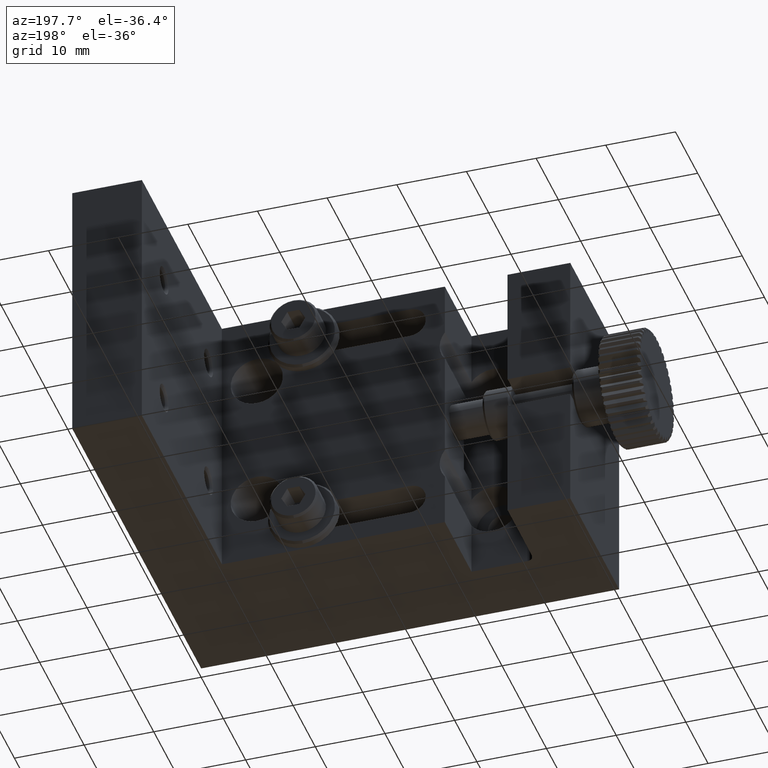
[diagram: clean part render]
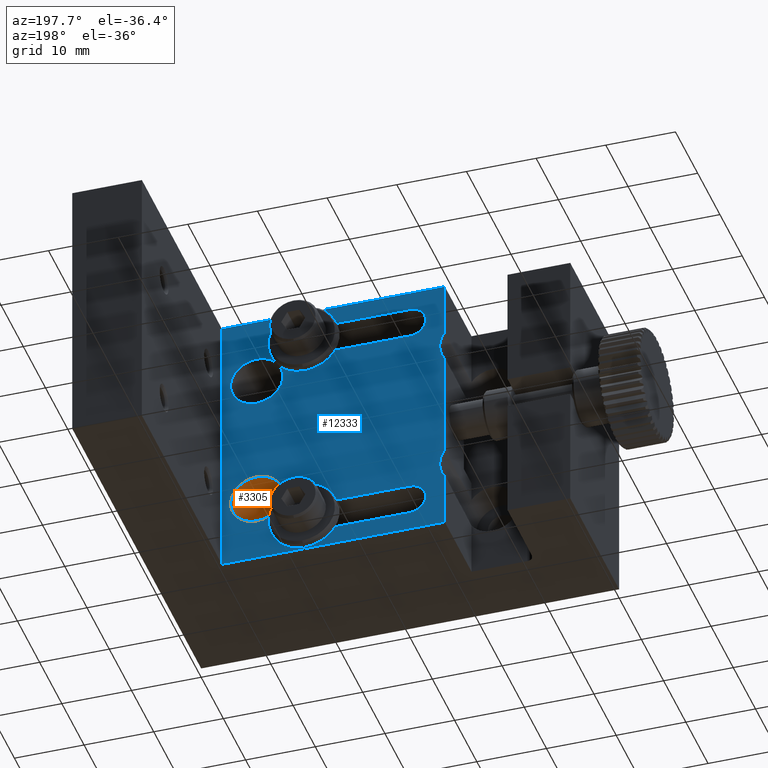
[diagram: same view with the hole feature highlighted: cylindrical wall and planar end face, labeled with their STEP entity ids]
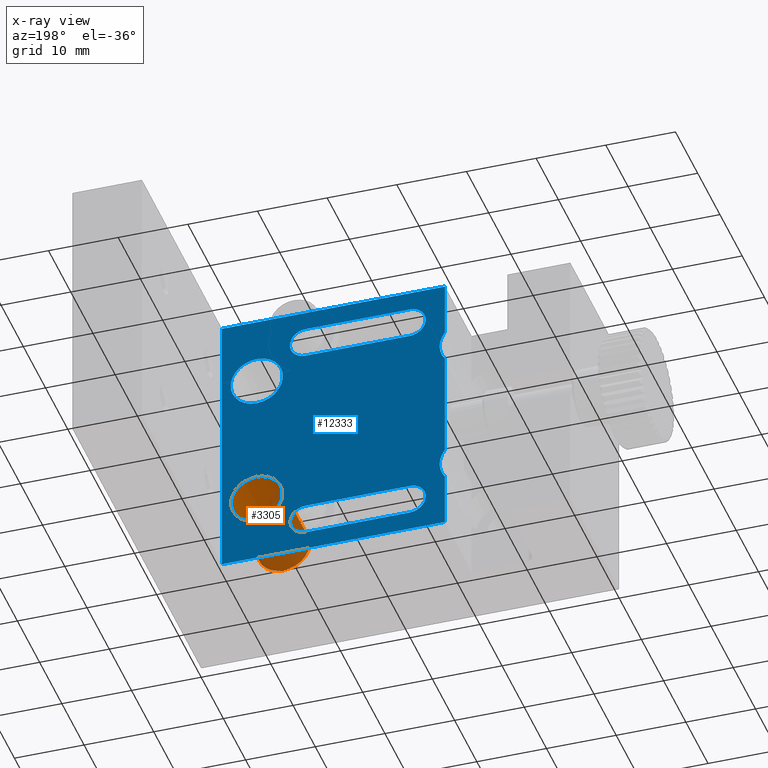
[diagram: x-ray of the same camera — body ghosted, the hole faces saturated]
A machine part, auxiliary view. The highlighted faces form one hole feature of diameter 7.5 mm: the cylindrical wall (entity #3305, orange) and its adjacent planar end face (entity #12333, blue) — they share a circular edge in the B-rep.
The next image is the same camera in x-ray (body ghosted, the hole faces saturated) — the bore reads through the body.
Wall:
#164 = FACE_OUTER_BOUND ( 'NONE', #7133, .T. ) ;
#220 = VERTEX_POINT ( 'NONE', #10266 ) ;
#538 = CARTESIAN_POINT ( 'NONE',  ( 45.00000000000000000, 22.00000000000000000, -30.00000000000000000 ) ) ;
#963 = CIRCLE ( 'NONE', #10586, 3.750000000000003553 ) ;
#1196 = DIRECTION ( 'NONE',  ( 0.000000000000000000, 0.000000000000000000, -1.000000000000000000 ) ) ;
#2188 = CARTESIAN_POINT ( 'NONE',  ( 45.00000000000000000, 22.00000000000000000, -30.00000000000000000 ) ) ;
#2205 = DIRECTION ( 'NONE',  ( 0.000000000000000000, -1.000000000000000000, 0.000000000000000000 ) ) ;
#3263 = DIRECTION ( 'NONE',  ( 0.000000000000000000, 0.000000000000000000, -1.000000000000000000 ) ) ;
#3305 = ADVANCED_FACE ( 'NONE', ( #9349, #164 ), #6210, .F. ) ;
#3923 = EDGE_LOOP ( 'NONE', ( #4760 ) ) ;
#4391 = CARTESIAN_POINT ( 'NONE',  ( 45.00000000000000000, 10.00000000000000000, -33.75000000000000000 ) ) ;
#4475 = AXIS2_PLACEMENT_3D ( 'NONE', #2188, #6277, #10277 ) ;
#4641 = DIRECTION ( 'NONE',  ( 0.000000000000000000, -1.000000000000000000, 0.000000000000000000 ) ) ;
#4760 = ORIENTED_EDGE ( 'NONE', *, *, #11515, .T. ) ;
#5227 = CARTESIAN_POINT ( 'NONE',  ( 45.00000000000000000, 10.00000000000000000, -30.00000000000000000 ) ) ;
#6210 = CYLINDRICAL_SURFACE ( 'NONE', #4475, 3.750000000000003553 ) ;
#6277 = DIRECTION ( 'NONE',  ( 0.000000000000000000, -1.000000000000000000, 0.000000000000000000 ) ) ;
#7133 = EDGE_LOOP ( 'NONE', ( #11522 ) ) ;
#8883 = AXIS2_PLACEMENT_3D ( 'NONE', #538, #4641, #3263 ) ;
#9349 = FACE_OUTER_BOUND ( 'NONE', #3923, .T. ) ;
#9958 = CIRCLE ( 'NONE', #8883, 3.750000000000003553 ) ;
#10266 = CARTESIAN_POINT ( 'NONE',  ( 45.00000000000000000, 22.00000000000000000, -33.75000000000000000 ) ) ;
#10277 = DIRECTION ( 'NONE',  ( 0.000000000000000000, 0.000000000000000000, -1.000000000000000000 ) ) ;
#10586 = AXIS2_PLACEMENT_3D ( 'NONE', #5227, #2205, #1196 ) ;
#11277 = VERTEX_POINT ( 'NONE', #4391 ) ;
#11515 = EDGE_CURVE ( 'NONE', #11277, #11277, #963, .T. ) ;
#11522 = ORIENTED_EDGE ( 'NONE', *, *, #11982, .F. ) ;
#11982 = EDGE_CURVE ( 'NONE', #220, #220, #9958, .T. ) ;
End face:
#202 = FACE_BOUND ( 'NONE', #13129, .T. ) ;
#220 = VERTEX_POINT ( 'NONE', #10266 ) ;
#231 = CARTESIAN_POINT ( 'NONE',  ( 23.00000000000000355, 22.00000000000000000, -32.75000000000000000 ) ) ;
#270 = CARTESIAN_POINT ( 'NONE',  ( 15.00000000000000355, 22.00000000000000000, -30.00000000000000000 ) ) ;
#431 = DIRECTION ( 'NONE',  ( 1.000000000000000000, -0.000000000000000000, 1.224646799147350002E-16 ) ) ;
#538 = CARTESIAN_POINT ( 'NONE',  ( 45.00000000000000000, 22.00000000000000000, -30.00000000000000000 ) ) ;
#576 = ORIENTED_EDGE ( 'NONE', *, *, #1417, .T. ) ;
#593 = CIRCLE ( 'NONE', #8951, 3.750000000000000000 ) ;
#661 = ORIENTED_EDGE ( 'NONE', *, *, #11982, .T. ) ;
#663 = DIRECTION ( 'NONE',  ( 0.000000000000000000, -0.000000000000000000, 1.000000000000000000 ) ) ;
#668 = CARTESIAN_POINT ( 'NONE',  ( 18.00000000000000355, 22.00000000000000000, -12.25000000000000000 ) ) ;
#759 = VECTOR ( 'NONE', #4878, 1000.000000000000000 ) ;
#780 = EDGE_CURVE ( 'NONE', #7961, #1140, #5745, .T. ) ;
#800 = LINE ( 'NONE', #4904, #9975 ) ;
#807 = ORIENTED_EDGE ( 'NONE', *, *, #780, .T. ) ;
#832 = LINE ( 'NONE', #3052, #7858 ) ;
#1069 = EDGE_CURVE ( 'NONE', #6339, #6624, #4459, .T. ) ;
#1116 = CARTESIAN_POINT ( 'NONE',  ( 15.00000000000000355, 22.00000000000000000, -10.00000000000000000 ) ) ;
#1140 = VERTEX_POINT ( 'NONE', #4108 ) ;
#1241 = CARTESIAN_POINT ( 'NONE',  ( 45.00000000000000000, 22.00000000000000000, -10.00000000000000000 ) ) ;
#1273 = LINE ( 'NONE', #2285, #11340 ) ;
#1340 = VERTEX_POINT ( 'NONE', #10971 ) ;
#1342 = DIRECTION ( 'NONE',  ( 0.000000000000000000, -0.000000000000000000, 1.000000000000000000 ) ) ;
#1417 = EDGE_CURVE ( 'NONE', #5208, #3936, #800, .T. ) ;
#1461 = ORIENTED_EDGE ( 'NONE', *, *, #3319, .F. ) ;
#1626 = ORIENTED_EDGE ( 'NONE', *, *, #1069, .T. ) ;
#2285 = CARTESIAN_POINT ( 'NONE',  ( 18.00000000000000711, 22.00000000000000000, -27.75000000000000000 ) ) ;
#2294 = PLANE ( 'NONE',  #5490 ) ;
#2310 = EDGE_CURVE ( 'NONE', #10756, #10171, #832, .T. ) ;
#2419 = DIRECTION ( 'NONE',  ( 0.000000000000000000, 0.000000000000000000, -1.000000000000000000 ) ) ;
#2510 = VERTEX_POINT ( 'NONE', #8705 ) ;
#2543 = VERTEX_POINT ( 'NONE', #5511 ) ;
#2725 = DIRECTION ( 'NONE',  ( 0.000000000000000000, -1.000000000000000000, 0.000000000000000000 ) ) ;
#2759 = CARTESIAN_POINT ( 'NONE',  ( 18.00000000000000355, 22.00000000000000355, 0.000000000000000000 ) ) ;
#2873 = CIRCLE ( 'NONE', #12915, 2.250000000000001776 ) ;
#2999 = DIRECTION ( 'NONE',  ( 0.000000000000000000, 0.000000000000000000, -1.000000000000000000 ) ) ;
#3052 = CARTESIAN_POINT ( 'NONE',  ( 15.00000000000000355, 22.00000000000000000, -7.249999999999999112 ) ) ;
#3263 = DIRECTION ( 'NONE',  ( 0.000000000000000000, 0.000000000000000000, -1.000000000000000000 ) ) ;
#3308 = EDGE_CURVE ( 'NONE', #6613, #6613, #593, .T. ) ;
#3319 = EDGE_CURVE ( 'NONE', #2543, #6624, #3385, .T. ) ;
#3385 = LINE ( 'NONE', #231, #7045 ) ;
#3708 = CARTESIAN_POINT ( 'NONE',  ( 23.00000000000000355, 22.00000000000000000, -35.00000000000000000 ) ) ;
#3713 = CARTESIAN_POINT ( 'NONE',  ( 18.00000000000000355, 22.00000000000000000, 0.000000000000000000 ) ) ;
#3905 = VERTEX_POINT ( 'NONE', #13070 ) ;
#3927 = LINE ( 'NONE', #6146, #759 ) ;
#3936 = VERTEX_POINT ( 'NONE', #2759 ) ;
#4108 = CARTESIAN_POINT ( 'NONE',  ( 23.00000000000000355, 22.00000000000000000, -2.749999999999999556 ) ) ;
#4197 = ORIENTED_EDGE ( 'NONE', *, *, #2310, .T. ) ;
#4199 = DIRECTION ( 'NONE',  ( 0.000000000000000000, 0.000000000000000000, -1.000000000000000000 ) ) ;
#4212 = EDGE_LOOP ( 'NONE', ( #1461, #10457, #7748, #1626 ) ) ;
#4265 = LINE ( 'NONE', #10708, #5264 ) ;
#4293 = DIRECTION ( 'NONE',  ( -1.224646799147350002E-16, -0.000000000000000000, 1.000000000000000000 ) ) ;
#4369 = CARTESIAN_POINT ( 'NONE',  ( 38.00000000000000711, 22.00000000000000000, -37.25000000000000000 ) ) ;
#4459 = CIRCLE ( 'NONE', #12139, 2.250000000000001776 ) ;
#4568 = ORIENTED_EDGE ( 'NONE', *, *, #11915, .T. ) ;
#4611 = AXIS2_PLACEMENT_3D ( 'NONE', #1116, #11221, #2999 ) ;
#4641 = DIRECTION ( 'NONE',  ( 0.000000000000000000, -1.000000000000000000, 0.000000000000000000 ) ) ;
#4878 = DIRECTION ( 'NONE',  ( -1.000000000000000000, -0.000000000000000000, 0.000000000000000000 ) ) ;
#4904 = CARTESIAN_POINT ( 'NONE',  ( 18.00000000000000355, 22.00000000000000000, -30.00000000000000000 ) ) ;
#4932 = DIRECTION ( 'NONE',  ( 1.000000000000000000, 0.000000000000000000, -0.000000000000000000 ) ) ;
#4995 = CARTESIAN_POINT ( 'NONE',  ( 23.00000000000000355, 22.00000000000000000, -7.250000000000000888 ) ) ;
#5007 = CARTESIAN_POINT ( 'NONE',  ( 15.00000000000000355, 22.00000000000000000, -2.749999999999999112 ) ) ;
#5065 = AXIS2_PLACEMENT_3D ( 'NONE', #9256, #12267, #9119 ) ;
#5089 = CARTESIAN_POINT ( 'NONE',  ( 60.00000000000000711, 22.00000000000000000, -40.00000000000000000 ) ) ;
#5183 = EDGE_CURVE ( 'NONE', #1340, #10392, #1273, .T. ) ;
#5208 = VERTEX_POINT ( 'NONE', #7447 ) ;
#5264 = VECTOR ( 'NONE', #7482, 1000.000000000000000 ) ;
#5315 = FACE_OUTER_BOUND ( 'NONE', #10803, .T. ) ;
#5340 = DIRECTION ( 'NONE',  ( 1.000000000000000000, -0.000000000000000000, 0.000000000000000000 ) ) ;
#5365 = EDGE_CURVE ( 'NONE', #7200, #2510, #13185, .T. ) ;
#5386 = DIRECTION ( 'NONE',  ( 0.000000000000000000, -1.000000000000000000, 0.000000000000000000 ) ) ;
#5469 = CARTESIAN_POINT ( 'NONE',  ( 38.00000000000000711, 22.00000000000000000, -35.00000000000000000 ) ) ;
#5490 = AXIS2_PLACEMENT_3D ( 'NONE', #270, #7518, #1342 ) ;
#5511 = CARTESIAN_POINT ( 'NONE',  ( 23.00000000000000355, 22.00000000000000000, -32.75000000000000000 ) ) ;
#5599 = EDGE_CURVE ( 'NONE', #3936, #12049, #12433, .T. ) ;
#5608 = AXIS2_PLACEMENT_3D ( 'NONE', #10676, #2725, #6630 ) ;
#5745 = LINE ( 'NONE', #5007, #6556 ) ;
#5761 = ORIENTED_EDGE ( 'NONE', *, *, #5183, .T. ) ;
#6146 = CARTESIAN_POINT ( 'NONE',  ( 38.00000000000000711, 22.00000000000000000, -37.25000000000000000 ) ) ;
#6256 = DIRECTION ( 'NONE',  ( 0.000000000000000000, 0.000000000000000000, -1.000000000000000000 ) ) ;
#6339 = VERTEX_POINT ( 'NONE', #4369 ) ;
#6382 = FACE_BOUND ( 'NONE', #8717, .T. ) ;
#6459 = ORIENTED_EDGE ( 'NONE', *, *, #5365, .T. ) ;
#6556 = VECTOR ( 'NONE', #9881, 1000.000000000000000 ) ;
#6613 = VERTEX_POINT ( 'NONE', #7869 ) ;
#6615 = DIRECTION ( 'NONE',  ( 0.000000000000000000, -1.000000000000000000, 0.000000000000000000 ) ) ;
#6624 = VERTEX_POINT ( 'NONE', #13065 ) ;
#6630 = DIRECTION ( 'NONE',  ( 0.000000000000000000, 0.000000000000000000, -1.000000000000000000 ) ) ;
#6666 = VECTOR ( 'NONE', #431, 1000.000000000000000 ) ;
#6728 = CARTESIAN_POINT ( 'NONE',  ( 50.00000000000000000, 22.00000000000000355, 2.612579838181013339E-15 ) ) ;
#6962 = DIRECTION ( 'NONE',  ( -1.000000000000000000, -0.000000000000000000, -1.652117596168389975E-16 ) ) ;
#7027 = CARTESIAN_POINT ( 'NONE',  ( 50.00000000000000000, 22.00000000000000000, -30.00000000000000000 ) ) ;
#7045 = VECTOR ( 'NONE', #5340, 1000.000000000000000 ) ;
#7200 = VERTEX_POINT ( 'NONE', #11436 ) ;
#7210 = CIRCLE ( 'NONE', #5065, 3.750000000000003553 ) ;
#7350 = DIRECTION ( 'NONE',  ( 0.000000000000000000, -1.000000000000000000, 0.000000000000000000 ) ) ;
#7447 = CARTESIAN_POINT ( 'NONE',  ( 18.00000000000000355, 22.00000000000000000, -7.750000000000000000 ) ) ;
#7451 = CARTESIAN_POINT ( 'NONE',  ( 23.00000000000000355, 22.00000000000000000, -37.25000000000000000 ) ) ;
#7482 = DIRECTION ( 'NONE',  ( -4.072182490775210044E-16, -0.000000000000000000, 1.000000000000000000 ) ) ;
#7518 = DIRECTION ( 'NONE',  ( 0.000000000000000000, 1.000000000000000000, 0.000000000000000000 ) ) ;
#7748 = ORIENTED_EDGE ( 'NONE', *, *, #11738, .F. ) ;
#7858 = VECTOR ( 'NONE', #4932, 1000.000000000000000 ) ;
#7863 = ORIENTED_EDGE ( 'NONE', *, *, #12988, .T. ) ;
#7869 = CARTESIAN_POINT ( 'NONE',  ( 45.00000000000000000, 22.00000000000000000, -13.75000000000000000 ) ) ;
#7961 = VERTEX_POINT ( 'NONE', #12266 ) ;
#8192 = CARTESIAN_POINT ( 'NONE',  ( 38.00000000000000711, 22.00000000000000000, -7.249999999999999112 ) ) ;
#8271 = AXIS2_PLACEMENT_3D ( 'NONE', #9573, #8452, #2419 ) ;
#8452 = DIRECTION ( 'NONE',  ( 0.000000000000000000, -1.000000000000000000, 0.000000000000000000 ) ) ;
#8512 = FACE_BOUND ( 'NONE', #10655, .T. ) ;
#8566 = EDGE_CURVE ( 'NONE', #10171, #7961, #13094, .T. ) ;
#8705 = CARTESIAN_POINT ( 'NONE',  ( 18.00000000000001421, 22.00000000000000355, -40.00000000000000711 ) ) ;
#8717 = EDGE_LOOP ( 'NONE', ( #11593 ) ) ;
#8883 = AXIS2_PLACEMENT_3D ( 'NONE', #538, #4641, #3263 ) ;
#8951 = AXIS2_PLACEMENT_3D ( 'NONE', #1241, #7350, #4199 ) ;
#9088 = DIRECTION ( 'NONE',  ( -0.000000000000000000, 0.000000000000000000, -1.000000000000000000 ) ) ;
#9119 = DIRECTION ( 'NONE',  ( 0.000000000000000000, 0.000000000000000000, -1.000000000000000000 ) ) ;
#9256 = CARTESIAN_POINT ( 'NONE',  ( 15.00000000000000355, 22.00000000000000000, -30.00000000000000000 ) ) ;
#9573 = CARTESIAN_POINT ( 'NONE',  ( 23.00000000000000355, 22.00000000000000000, -5.000000000000000000 ) ) ;
#9866 = DIRECTION ( 'NONE',  ( 0.000000000000000000, 0.000000000000000000, -1.000000000000000000 ) ) ;
#9881 = DIRECTION ( 'NONE',  ( -1.000000000000000000, -0.000000000000000000, 0.000000000000000000 ) ) ;
#9918 = EDGE_CURVE ( 'NONE', #12049, #7200, #11222, .T. ) ;
#9958 = CIRCLE ( 'NONE', #8883, 3.750000000000003553 ) ;
#9975 = VECTOR ( 'NONE', #663, 1000.000000000000000 ) ;
#10171 = VERTEX_POINT ( 'NONE', #8192 ) ;
#10266 = CARTESIAN_POINT ( 'NONE',  ( 45.00000000000000000, 22.00000000000000000, -33.75000000000000000 ) ) ;
#10392 = VERTEX_POINT ( 'NONE', #668 ) ;
#10457 = ORIENTED_EDGE ( 'NONE', *, *, #10651, .T. ) ;
#10572 = FACE_BOUND ( 'NONE', #4212, .T. ) ;
#10651 = EDGE_CURVE ( 'NONE', #2543, #11082, #2873, .T. ) ;
#10655 = EDGE_LOOP ( 'NONE', ( #807, #11988, #4197, #11653 ) ) ;
#10676 = CARTESIAN_POINT ( 'NONE',  ( 38.00000000000000711, 22.00000000000000000, -5.000000000000000000 ) ) ;
#10680 = VECTOR ( 'NONE', #6962, 1000.000000000000000 ) ;
#10708 = CARTESIAN_POINT ( 'NONE',  ( 18.00000000000001066, 22.00000000000000000, -40.00000000000000000 ) ) ;
#10756 = VERTEX_POINT ( 'NONE', #4995 ) ;
#10803 = EDGE_LOOP ( 'NONE', ( #7863, #576, #12825, #12795, #6459, #4568, #11932, #5761 ) ) ;
#10971 = CARTESIAN_POINT ( 'NONE',  ( 18.00000000000000711, 22.00000000000000000, -27.75000000000000355 ) ) ;
#11082 = VERTEX_POINT ( 'NONE', #7451 ) ;
#11221 = DIRECTION ( 'NONE',  ( 0.000000000000000000, -1.000000000000000000, 0.000000000000000000 ) ) ;
#11222 = LINE ( 'NONE', #7027, #11410 ) ;
#11340 = VECTOR ( 'NONE', #4293, 1000.000000000000000 ) ;
#11410 = VECTOR ( 'NONE', #9088, 1000.000000000000000 ) ;
#11436 = CARTESIAN_POINT ( 'NONE',  ( 50.00000000000000000, 22.00000000000000355, -40.00000000000000000 ) ) ;
#11465 = CIRCLE ( 'NONE', #8271, 2.250000000000000444 ) ;
#11593 = ORIENTED_EDGE ( 'NONE', *, *, #3308, .T. ) ;
#11653 = ORIENTED_EDGE ( 'NONE', *, *, #8566, .T. ) ;
#11738 = EDGE_CURVE ( 'NONE', #6339, #11082, #3927, .T. ) ;
#11915 = EDGE_CURVE ( 'NONE', #2510, #3905, #4265, .T. ) ;
#11932 = ORIENTED_EDGE ( 'NONE', *, *, #12274, .T. ) ;
#11982 = EDGE_CURVE ( 'NONE', #220, #220, #9958, .T. ) ;
#11988 = ORIENTED_EDGE ( 'NONE', *, *, #12350, .T. ) ;
#12049 = VERTEX_POINT ( 'NONE', #6728 ) ;
#12139 = AXIS2_PLACEMENT_3D ( 'NONE', #5469, #5386, #6256 ) ;
#12266 = CARTESIAN_POINT ( 'NONE',  ( 38.00000000000000711, 22.00000000000000000, -2.749999999999998224 ) ) ;
#12267 = DIRECTION ( 'NONE',  ( 0.000000000000000000, -1.000000000000000000, 0.000000000000000000 ) ) ;
#12274 = EDGE_CURVE ( 'NONE', #3905, #1340, #7210, .T. ) ;
#12302 = CIRCLE ( 'NONE', #4611, 3.750000000000000000 ) ;
#12333 = ADVANCED_FACE ( 'NONE', ( #5315, #202, #6382, #10572, #8512 ), #2294, .T. ) ;
#12350 = EDGE_CURVE ( 'NONE', #1140, #10756, #11465, .T. ) ;
#12433 = LINE ( 'NONE', #3713, #6666 ) ;
#12795 = ORIENTED_EDGE ( 'NONE', *, *, #9918, .T. ) ;
#12825 = ORIENTED_EDGE ( 'NONE', *, *, #5599, .T. ) ;
#12915 = AXIS2_PLACEMENT_3D ( 'NONE', #3708, #6615, #9866 ) ;
#12988 = EDGE_CURVE ( 'NONE', #10392, #5208, #12302, .T. ) ;
#13065 = CARTESIAN_POINT ( 'NONE',  ( 38.00000000000000711, 22.00000000000000000, -32.75000000000000000 ) ) ;
#13070 = CARTESIAN_POINT ( 'NONE',  ( 18.00000000000000355, 22.00000000000000000, -32.25000000000000000 ) ) ;
#13094 = CIRCLE ( 'NONE', #5608, 2.250000000000000444 ) ;
#13129 = EDGE_LOOP ( 'NONE', ( #661 ) ) ;
#13185 = LINE ( 'NONE', #5089, #10680 ) ;